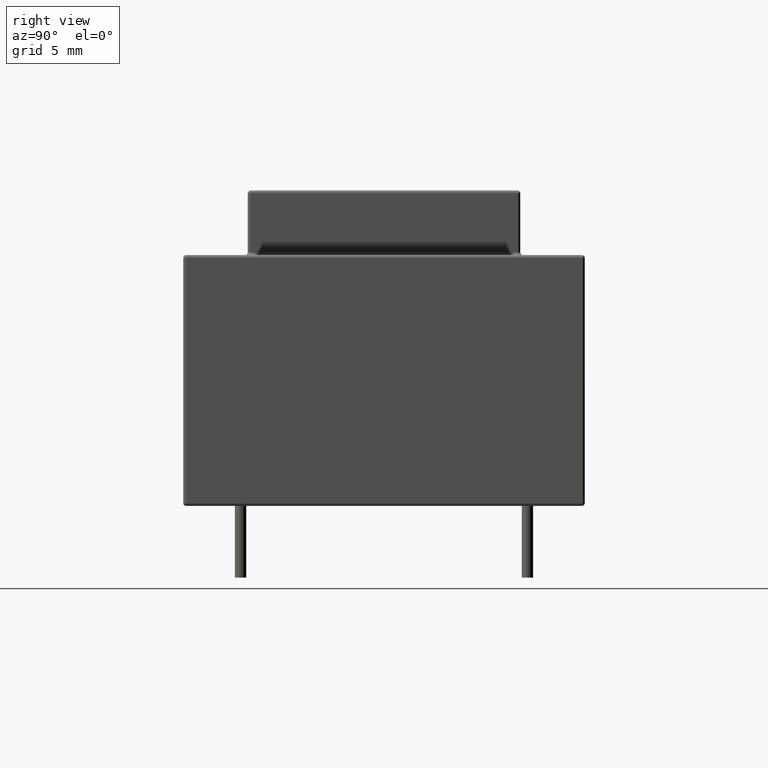
[diagram: clean part render]
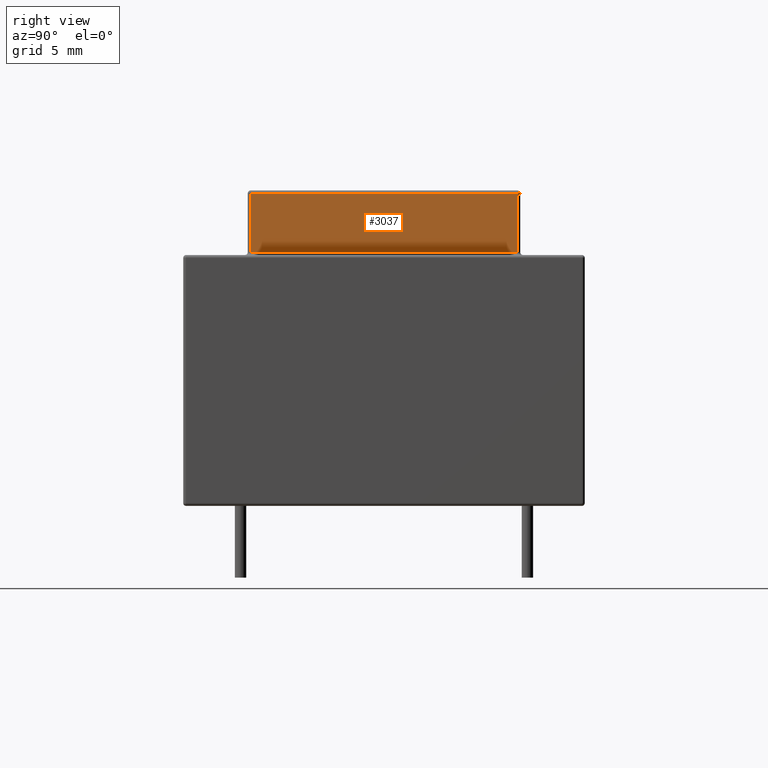
[diagram: same view with one face highlighted and labeled with its STEP entity id]
A machine part, right view. The second image highlights one B-rep face of the part: STEP entity #3037.
In plain terms, the highlighted planar face has unit normal (1, 0, 0).
Its self-contained STEP definition (entity closure, byte-faithful):
#2195 = CYLINDRICAL_SURFACE('',#2196,0.2);
#2196 = AXIS2_PLACEMENT_3D('',#2197,#2198,#2199);
#2197 = CARTESIAN_POINT('',(28.7,4.5,17.7));
#2198 = DIRECTION('',(0.,1.,0.));
#2199 = DIRECTION('',(0.,0.,-1.));
#2504 = VERTEX_POINT('',#2505);
#2505 = CARTESIAN_POINT('',(28.5,23.3,17.7));
#2540 = CYLINDRICAL_SURFACE('',#2541,0.2);
#2541 = AXIS2_PLACEMENT_3D('',#2542,#2543,#2544);
#2542 = CARTESIAN_POINT('',(28.3,23.3,17.5));
#2543 = DIRECTION('',(0.,0.,1.));
#2544 = DIRECTION('',(0.,1.,0.));
#2609 = VERTEX_POINT('',#2610);
#2610 = CARTESIAN_POINT('',(28.5,4.7,17.7));
#2630 = EDGE_CURVE('',#2609,#2504,#2631,.T.);
#2631 = SURFACE_CURVE('',#2632,(#2636,#2643),.PCURVE_S1.);
#2632 = LINE('',#2633,#2634);
#2633 = CARTESIAN_POINT('',(28.5,4.5,17.7));
#2634 = VECTOR('',#2635,1.);
#2635 = DIRECTION('',(0.,1.,0.));
#2636 = PCURVE('',#2195,#2637);
#2637 = DEFINITIONAL_REPRESENTATION('',(#2638),#2642);
#2638 = LINE('',#2639,#2640);
#2639 = CARTESIAN_POINT('',(1.570796326795,0.));
#2640 = VECTOR('',#2641,1.);
#2641 = DIRECTION('',(0.,1.));
#2642 = ( GEOMETRIC_REPRESENTATION_CONTEXT(2) 
PARAMETRIC_REPRESENTATION_CONTEXT() REPRESENTATION_CONTEXT('2D SPACE',''
  ) );
#2643 = PCURVE('',#2644,#2649);
#2644 = PLANE('',#2645);
#2645 = AXIS2_PLACEMENT_3D('',#2646,#2647,#2648);
#2646 = CARTESIAN_POINT('',(28.5,4.5,17.5));
#2647 = DIRECTION('',(1.,0.,0.));
#2648 = DIRECTION('',(0.,0.,1.));
#2649 = DEFINITIONAL_REPRESENTATION('',(#2650),#2654);
#2650 = LINE('',#2651,#2652);
#2651 = CARTESIAN_POINT('',(0.2,0.));
#2652 = VECTOR('',#2653,1.);
#2653 = DIRECTION('',(0.,-1.));
#2654 = ( GEOMETRIC_REPRESENTATION_CONTEXT(2) 
PARAMETRIC_REPRESENTATION_CONTEXT() REPRESENTATION_CONTEXT('2D SPACE',''
  ) );
#2754 = CYLINDRICAL_SURFACE('',#2755,0.2);
#2755 = AXIS2_PLACEMENT_3D('',#2756,#2757,#2758);
#2756 = CARTESIAN_POINT('',(28.3,4.7,17.5));
#2757 = DIRECTION('',(0.,0.,1.));
#2758 = DIRECTION('',(1.,0.,0.));
#2934 = EDGE_CURVE('',#2504,#2935,#2937,.T.);
#2935 = VERTEX_POINT('',#2936);
#2936 = CARTESIAN_POINT('',(28.5,23.3,21.8));
#2937 = SURFACE_CURVE('',#2938,(#2942,#2949),.PCURVE_S1.);
#2938 = LINE('',#2939,#2940);
#2939 = CARTESIAN_POINT('',(28.5,23.3,17.5));
#2940 = VECTOR('',#2941,1.);
#2941 = DIRECTION('',(0.,0.,1.));
#2942 = PCURVE('',#2540,#2943);
#2943 = DEFINITIONAL_REPRESENTATION('',(#2944),#2948);
#2944 = LINE('',#2945,#2946);
#2945 = CARTESIAN_POINT('',(-1.570796326795,0.));
#2946 = VECTOR('',#2947,1.);
#2947 = DIRECTION('',(-0.,1.));
#2948 = ( GEOMETRIC_REPRESENTATION_CONTEXT(2) 
PARAMETRIC_REPRESENTATION_CONTEXT() REPRESENTATION_CONTEXT('2D SPACE',''
  ) );
#2949 = PCURVE('',#2644,#2950);
#2950 = DEFINITIONAL_REPRESENTATION('',(#2951),#2955);
#2951 = LINE('',#2952,#2953);
#2952 = CARTESIAN_POINT('',(0.,-18.8));
#2953 = VECTOR('',#2954,1.);
#2954 = DIRECTION('',(1.,0.));
#2955 = ( GEOMETRIC_REPRESENTATION_CONTEXT(2) 
PARAMETRIC_REPRESENTATION_CONTEXT() REPRESENTATION_CONTEXT('2D SPACE',''
  ) );
#3037 = ADVANCED_FACE('',(#3038),#2644,.T.);
#3038 = FACE_BOUND('',#3039,.T.);
#3039 = EDGE_LOOP('',(#3040,#3041,#3042,#3070));
#3040 = ORIENTED_EDGE('',*,*,#2630,.T.);
#3041 = ORIENTED_EDGE('',*,*,#2934,.T.);
#3042 = ORIENTED_EDGE('',*,*,#3043,.F.);
#3043 = EDGE_CURVE('',#3044,#2935,#3046,.T.);
#3044 = VERTEX_POINT('',#3045);
#3045 = CARTESIAN_POINT('',(28.5,4.7,21.8));
#3046 = SURFACE_CURVE('',#3047,(#3051,#3058),.PCURVE_S1.);
#3047 = LINE('',#3048,#3049);
#3048 = CARTESIAN_POINT('',(28.5,4.5,21.8));
#3049 = VECTOR('',#3050,1.);
#3050 = DIRECTION('',(0.,1.,0.));
#3051 = PCURVE('',#2644,#3052);
#3052 = DEFINITIONAL_REPRESENTATION('',(#3053),#3057);
#3053 = LINE('',#3054,#3055);
#3054 = CARTESIAN_POINT('',(4.3,0.));
#3055 = VECTOR('',#3056,1.);
#3056 = DIRECTION('',(0.,-1.));
#3057 = ( GEOMETRIC_REPRESENTATION_CONTEXT(2) 
PARAMETRIC_REPRESENTATION_CONTEXT() REPRESENTATION_CONTEXT('2D SPACE',''
  ) );
#3058 = PCURVE('',#3059,#3064);
#3059 = CYLINDRICAL_SURFACE('',#3060,0.2);
#3060 = AXIS2_PLACEMENT_3D('',#3061,#3062,#3063);
#3061 = CARTESIAN_POINT('',(28.3,4.5,21.8));
#3062 = DIRECTION('',(0.,1.,0.));
#3063 = DIRECTION('',(1.,0.,0.));
#3064 = DEFINITIONAL_REPRESENTATION('',(#3065),#3069);
#3065 = LINE('',#3066,#3067);
#3066 = CARTESIAN_POINT('',(-0.,0.));
#3067 = VECTOR('',#3068,1.);
#3068 = DIRECTION('',(-0.,1.));
#3069 = ( GEOMETRIC_REPRESENTATION_CONTEXT(2) 
PARAMETRIC_REPRESENTATION_CONTEXT() REPRESENTATION_CONTEXT('2D SPACE',''
  ) );
#3070 = ORIENTED_EDGE('',*,*,#3071,.F.);
#3071 = EDGE_CURVE('',#2609,#3044,#3072,.T.);
#3072 = SURFACE_CURVE('',#3073,(#3077,#3084),.PCURVE_S1.);
#3073 = LINE('',#3074,#3075);
#3074 = CARTESIAN_POINT('',(28.5,4.7,17.5));
#3075 = VECTOR('',#3076,1.);
#3076 = DIRECTION('',(0.,0.,1.));
#3077 = PCURVE('',#2644,#3078);
#3078 = DEFINITIONAL_REPRESENTATION('',(#3079),#3083);
#3079 = LINE('',#3080,#3081);
#3080 = CARTESIAN_POINT('',(0.,-0.2));
#3081 = VECTOR('',#3082,1.);
#3082 = DIRECTION('',(1.,0.));
#3083 = ( GEOMETRIC_REPRESENTATION_CONTEXT(2) 
PARAMETRIC_REPRESENTATION_CONTEXT() REPRESENTATION_CONTEXT('2D SPACE',''
  ) );
#3084 = PCURVE('',#2754,#3085);
#3085 = DEFINITIONAL_REPRESENTATION('',(#3086),#3090);
#3086 = LINE('',#3087,#3088);
#3087 = CARTESIAN_POINT('',(-0.,0.));
#3088 = VECTOR('',#3089,1.);
#3089 = DIRECTION('',(-0.,1.));
#3090 = ( GEOMETRIC_REPRESENTATION_CONTEXT(2) 
PARAMETRIC_REPRESENTATION_CONTEXT() REPRESENTATION_CONTEXT('2D SPACE',''
  ) );